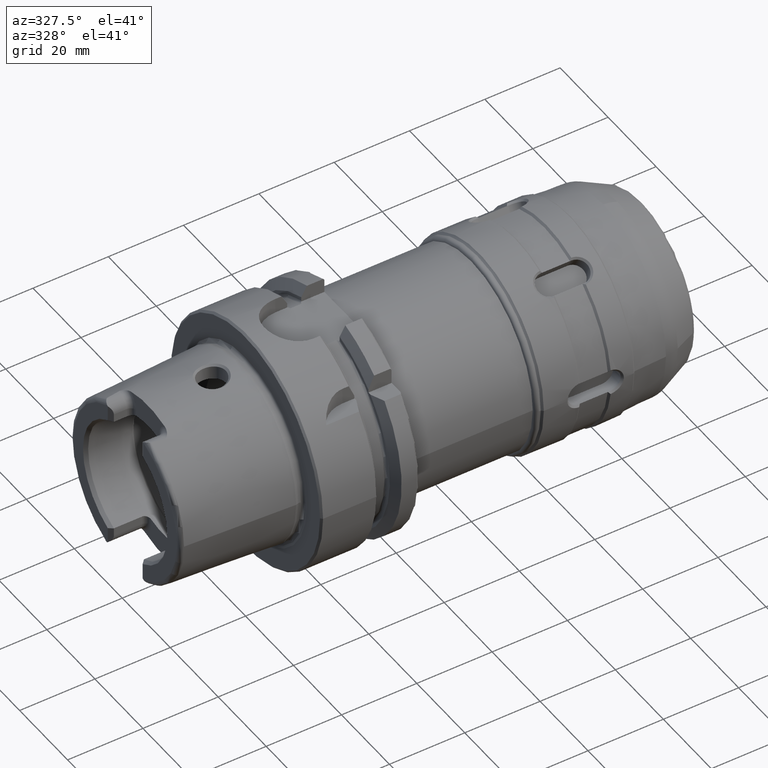
[diagram: clean part render]
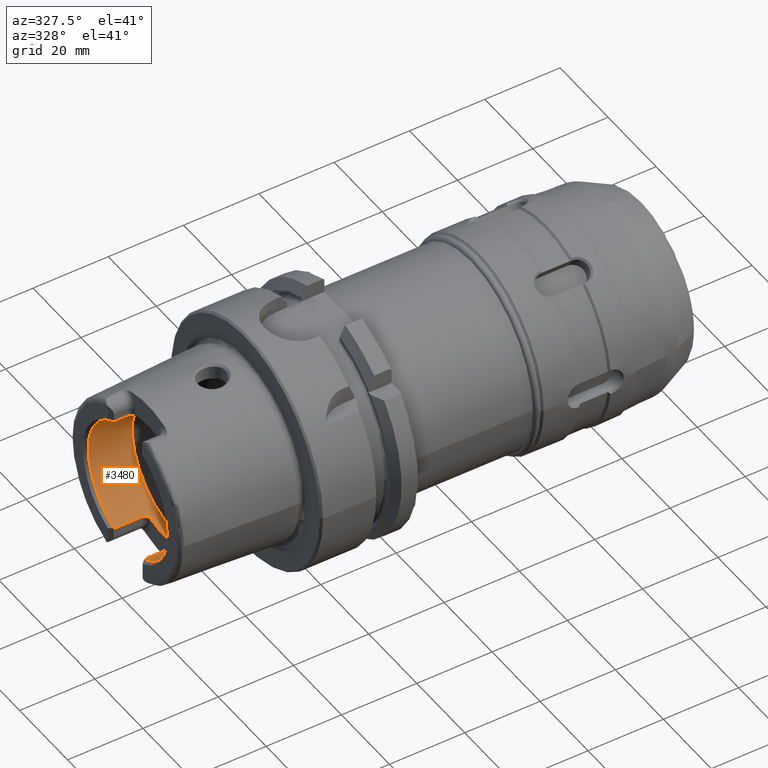
[diagram: same view with one face highlighted and labeled with its STEP entity id]
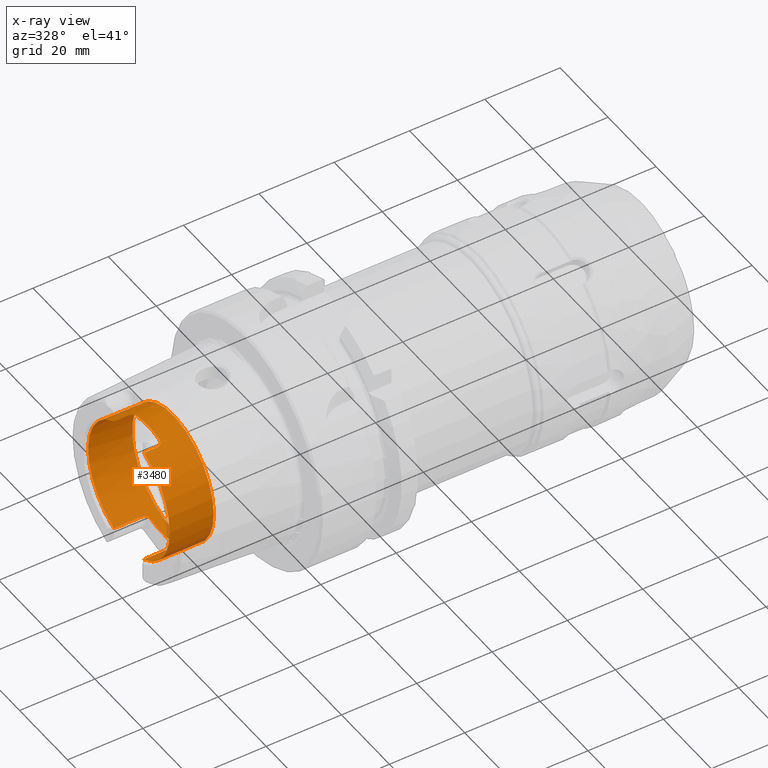
[diagram: x-ray of the same camera — body ghosted, the highlighted face saturated]
A machine part, auxiliary view. The second image highlights one B-rep face of the part: STEP entity #3480.
The next image is the same camera in x-ray: the body ghosted, the highlighted face saturated — about 0% of this face is hidden behind the body in this view.
In plain terms, the highlighted cylindrical surface (bore or boss wall) has radius 17 mm, axis along (-1, 0, -0).
Its self-contained STEP definition (entity closure, byte-faithful):
#149=B_SPLINE_CURVE_WITH_KNOTS('',3,(#6326,#6327,#6328,#6329,#6330,#6331,
#6332,#6333,#6334,#6335),.UNSPECIFIED.,.F.,.F.,(4,2,2,2,4),(0.229569660485746,
0.289239803007022,0.348909945528297,0.405407845050218,0.46190574457214),
 .UNSPECIFIED.);
#150=B_SPLINE_CURVE_WITH_KNOTS('',3,(#6344,#6345,#6346,#6347,#6348,#6349,
#6350,#6351,#6352,#6353),.UNSPECIFIED.,.F.,.F.,(4,2,2,2,4),(0.46190574457214,
0.519239917776744,0.576574090981348,0.635410522815223,0.694246954649097),
 .UNSPECIFIED.);
#151=B_SPLINE_CURVE_WITH_KNOTS('',3,(#6362,#6363,#6364,#6365,#6366,#6367,
#6368,#6369,#6370,#6371),.UNSPECIFIED.,.F.,.F.,(4,2,2,2,4),(0.461905744572139,
0.518403644094061,0.574901543615982,0.634571686137257,0.694241828658533),
 .UNSPECIFIED.);
#152=B_SPLINE_CURVE_WITH_KNOTS('',3,(#6385,#6386,#6387,#6388,#6389,#6390,
#6391,#6392,#6393,#6394),.UNSPECIFIED.,.F.,.F.,(4,2,2,2,4),(0.229569660485747,
0.289239803007022,0.348909945528297,0.405407845050218,0.46190574457214),
 .UNSPECIFIED.);
#452=FACE_OUTER_BOUND('',#666,.T.);
#666=EDGE_LOOP('',(#2735,#2736,#2737,#2738,#2739,#2740,#2741,#2742,#2743,
#2744,#2745,#2746,#2747,#2748,#2749,#2750,#2751));
#799=LINE('',#5142,#980);
#805=LINE('',#5158,#986);
#811=LINE('',#5213,#992);
#815=LINE('',#5279,#996);
#885=LINE('',#6409,#1066);
#980=VECTOR('',#4147,10.);
#986=VECTOR('',#4161,10.);
#992=VECTOR('',#4183,10.);
#996=VECTOR('',#4207,10.);
#1066=VECTOR('',#4543,17.);
#1233=CIRCLE('',#3842,17.);
#1238=CIRCLE('',#3853,17.);
#1239=CIRCLE('',#3855,17.);
#1240=CIRCLE('',#3856,17.);
#1241=CIRCLE('',#3857,17.);
#1242=CIRCLE('',#3858,17.);
#1243=CIRCLE('',#3859,17.);
#1362=VERTEX_POINT('',#5095);
#1369=VERTEX_POINT('',#5141);
#1372=VERTEX_POINT('',#5148);
#1375=VERTEX_POINT('',#5156);
#1383=VERTEX_POINT('',#5203);
#1386=VERTEX_POINT('',#5211);
#1393=VERTEX_POINT('',#5246);
#1398=VERTEX_POINT('',#5278);
#1516=VERTEX_POINT('',#6324);
#1518=VERTEX_POINT('',#6343);
#1520=VERTEX_POINT('',#6361);
#1521=VERTEX_POINT('',#6378);
#1523=VERTEX_POINT('',#6405);
#1524=VERTEX_POINT('',#6406);
#1525=VERTEX_POINT('',#6408);
#1732=EDGE_CURVE('',#1369,#1362,#799,.T.);
#1740=EDGE_CURVE('',#1372,#1375,#805,.T.);
#1753=EDGE_CURVE('',#1383,#1386,#811,.T.);
#1767=EDGE_CURVE('',#1398,#1393,#815,.T.);
#1944=EDGE_CURVE('',#1516,#1386,#149,.T.);
#1948=EDGE_CURVE('',#1398,#1518,#150,.T.);
#1953=EDGE_CURVE('',#1369,#1520,#151,.T.);
#1957=EDGE_CURVE('',#1521,#1520,#1233,.T.);
#1961=EDGE_CURVE('',#1521,#1375,#152,.T.);
#1965=EDGE_CURVE('',#1516,#1518,#1238,.T.);
#1966=EDGE_CURVE('',#1523,#1524,#1239,.T.);
#1967=EDGE_CURVE('',#1523,#1525,#885,.T.);
#1968=EDGE_CURVE('',#1383,#1525,#1240,.T.);
#1969=EDGE_CURVE('',#1372,#1393,#1241,.T.);
#1970=EDGE_CURVE('',#1525,#1362,#1242,.T.);
#1971=EDGE_CURVE('',#1524,#1523,#1243,.T.);
#2735=ORIENTED_EDGE('',*,*,#1966,.F.);
#2736=ORIENTED_EDGE('',*,*,#1967,.T.);
#2737=ORIENTED_EDGE('',*,*,#1968,.F.);
#2738=ORIENTED_EDGE('',*,*,#1753,.T.);
#2739=ORIENTED_EDGE('',*,*,#1944,.F.);
#2740=ORIENTED_EDGE('',*,*,#1965,.T.);
#2741=ORIENTED_EDGE('',*,*,#1948,.F.);
#2742=ORIENTED_EDGE('',*,*,#1767,.T.);
#2743=ORIENTED_EDGE('',*,*,#1969,.F.);
#2744=ORIENTED_EDGE('',*,*,#1740,.T.);
#2745=ORIENTED_EDGE('',*,*,#1961,.F.);
#2746=ORIENTED_EDGE('',*,*,#1957,.T.);
#2747=ORIENTED_EDGE('',*,*,#1953,.F.);
#2748=ORIENTED_EDGE('',*,*,#1732,.T.);
#2749=ORIENTED_EDGE('',*,*,#1970,.F.);
#2750=ORIENTED_EDGE('',*,*,#1967,.F.);
#2751=ORIENTED_EDGE('',*,*,#1971,.F.);
#3356=CYLINDRICAL_SURFACE('',#3854,17.);
#3480=ADVANCED_FACE('',(#452),#3356,.F.);
#3842=AXIS2_PLACEMENT_3D('',#6379,#4513,#4514);
#3853=AXIS2_PLACEMENT_3D('',#6403,#4537,#4538);
#3854=AXIS2_PLACEMENT_3D('',#6404,#4539,#4540);
#3855=AXIS2_PLACEMENT_3D('',#6407,#4541,#4542);
#3856=AXIS2_PLACEMENT_3D('',#6410,#4544,#4545);
#3857=AXIS2_PLACEMENT_3D('',#6411,#4546,#4547);
#3858=AXIS2_PLACEMENT_3D('',#6412,#4548,#4549);
#3859=AXIS2_PLACEMENT_3D('',#6413,#4550,#4551);
#4147=DIRECTION('',(-1.,0.,0.));
#4161=DIRECTION('',(1.,0.,0.));
#4183=DIRECTION('',(1.,0.,0.));
#4207=DIRECTION('',(-1.,0.,0.));
#4513=DIRECTION('center_axis',(-1.,0.,0.));
#4514=DIRECTION('ref_axis',(0.,1.,0.));
#4537=DIRECTION('center_axis',(-1.,0.,0.));
#4538=DIRECTION('ref_axis',(0.,1.,0.));
#4539=DIRECTION('center_axis',(-1.,0.,0.));
#4540=DIRECTION('ref_axis',(0.,1.,0.));
#4541=DIRECTION('center_axis',(-1.,0.,0.));
#4542=DIRECTION('ref_axis',(0.,0.,1.));
#4543=DIRECTION('',(-1.,0.,0.));
#4544=DIRECTION('center_axis',(1.,0.,0.));
#4545=DIRECTION('ref_axis',(0.,-1.,0.));
#4546=DIRECTION('center_axis',(1.,0.,0.));
#4547=DIRECTION('ref_axis',(0.,-1.,0.));
#4548=DIRECTION('center_axis',(1.,0.,0.));
#4549=DIRECTION('ref_axis',(0.,-1.,0.));
#4550=DIRECTION('center_axis',(-1.,0.,0.));
#4551=DIRECTION('ref_axis',(0.,0.,1.));
#5095=CARTESIAN_POINT('',(-31.,-6.27,-15.8014904360317));
#5141=CARTESIAN_POINT('',(-23.5,-6.27,-15.8014904360317));
#5142=CARTESIAN_POINT('',(-25.6423502691896,-6.27,-15.8014904360317));
#5148=CARTESIAN_POINT('',(-31.,6.27,-15.8014904360317));
#5156=CARTESIAN_POINT('',(-23.5,6.27,-15.8014904360317));
#5158=CARTESIAN_POINT('',(-25.6423502691896,6.27,-15.8014904360317));
#5203=CARTESIAN_POINT('',(-31.,-6.27,15.8014904360317));
#5211=CARTESIAN_POINT('',(-27.5,-6.27,15.8014904360317));
#5213=CARTESIAN_POINT('',(-25.6423502691896,-6.27,15.8014904360317));
#5246=CARTESIAN_POINT('',(-31.,6.27,15.8014904360317));
#5278=CARTESIAN_POINT('',(-27.5,6.27,15.8014904360317));
#5279=CARTESIAN_POINT('',(-25.6423502691896,6.27,15.8014904360317));
#6324=CARTESIAN_POINT('',(-26.,-4.77,16.3170800083839));
#6326=CARTESIAN_POINT('Ctrl Pts',(-26.,-4.77,16.3170800083839));
#6327=CARTESIAN_POINT('Ctrl Pts',(-26.,-4.96091029208457,16.2612708750845));
#6328=CARTESIAN_POINT('Ctrl Pts',(-26.0385404635846,-5.16378617408596,16.1979610859593));
#6329=CARTESIAN_POINT('Ctrl Pts',(-26.1950909803916,-5.53690543536203,16.0742436586733));
#6330=CARTESIAN_POINT('Ctrl Pts',(-26.3130861154278,-5.70721093092864,16.01400454532));
#6331=CARTESIAN_POINT('Ctrl Pts',(-26.5811791540138,-5.96960590306613,15.9179857910505));
#6332=CARTESIAN_POINT('Ctrl Pts',(-26.7467155703026,-6.082078486584,15.8749745356799));
#6333=CARTESIAN_POINT('Ctrl Pts',(-27.1119229195206,-6.23232125085234,15.8165946761251));
#6334=CARTESIAN_POINT('Ctrl Pts',(-27.3116736682603,-6.27,15.8014904360317));
#6335=CARTESIAN_POINT('Ctrl Pts',(-27.5,-6.27,15.8014904360317));
#6343=CARTESIAN_POINT('',(-26.,4.77,16.3170800083839));
#6344=CARTESIAN_POINT('Ctrl Pts',(-27.5,6.27,15.8014904360317));
#6345=CARTESIAN_POINT('Ctrl Pts',(-27.308886089318,6.27,15.8014904360317));
#6346=CARTESIAN_POINT('Ctrl Pts',(-27.1064099842243,6.23121026569193,15.8170435837256));
#6347=CARTESIAN_POINT('Ctrl Pts',(-26.7371019784685,6.07691823919465,15.8769617281184));
#6348=CARTESIAN_POINT('Ctrl Pts',(-26.5701870418163,5.96150738537594,15.9210500039306));
#6349=CARTESIAN_POINT('Ctrl Pts',(-26.3050641818979,5.69638452545756,16.017853695422));
#6350=CARTESIAN_POINT('Ctrl Pts',(-26.1900212186221,5.52750941197086,16.0774506535614));
#6351=CARTESIAN_POINT('Ctrl Pts',(-26.0374824299787,5.15846789211413,16.1996292802954));
#6352=CARTESIAN_POINT('Ctrl Pts',(-26.,4.95824289522375,16.2620506397863));
#6353=CARTESIAN_POINT('Ctrl Pts',(-26.,4.77,16.3170800083839));
#6361=CARTESIAN_POINT('',(-22.,-4.77,-16.3170800083839));
#6362=CARTESIAN_POINT('Ctrl Pts',(-23.5,-6.27,-15.8014904360317));
#6363=CARTESIAN_POINT('Ctrl Pts',(-23.3116736682603,-6.27,-15.8014904360317));
#6364=CARTESIAN_POINT('Ctrl Pts',(-23.1119229195206,-6.23232125085234,-15.8165946761251));
#6365=CARTESIAN_POINT('Ctrl Pts',(-22.7467155703026,-6.082078486584,-15.8749745356799));
#6366=CARTESIAN_POINT('Ctrl Pts',(-22.5811791540138,-5.96960590306613,-15.9179857910505));
#6367=CARTESIAN_POINT('Ctrl Pts',(-22.3130861154278,-5.70721093092864,-16.01400454532));
#6368=CARTESIAN_POINT('Ctrl Pts',(-22.1950909803916,-5.53690543536204,-16.0742436586733));
#6369=CARTESIAN_POINT('Ctrl Pts',(-22.0385404635846,-5.16378617408596,-16.1979610859593));
#6370=CARTESIAN_POINT('Ctrl Pts',(-22.,-4.96091029208457,-16.2612708750845));
#6371=CARTESIAN_POINT('Ctrl Pts',(-22.,-4.77,-16.3170800083839));
#6378=CARTESIAN_POINT('',(-22.,4.77,-16.3170800083839));
#6379=CARTESIAN_POINT('Origin',(-22.,0.,0.));
#6385=CARTESIAN_POINT('Ctrl Pts',(-22.,4.77,-16.3170800083839));
#6386=CARTESIAN_POINT('Ctrl Pts',(-22.,4.96091029208457,-16.2612708750845));
#6387=CARTESIAN_POINT('Ctrl Pts',(-22.0385404635846,5.16378617408596,-16.1979610859593));
#6388=CARTESIAN_POINT('Ctrl Pts',(-22.1950909803916,5.53690543536204,-16.0742436586733));
#6389=CARTESIAN_POINT('Ctrl Pts',(-22.3130861154278,5.70721093092864,-16.01400454532));
#6390=CARTESIAN_POINT('Ctrl Pts',(-22.5811791540138,5.96960590306613,-15.9179857910505));
#6391=CARTESIAN_POINT('Ctrl Pts',(-22.7467155703026,6.082078486584,-15.8749745356799));
#6392=CARTESIAN_POINT('Ctrl Pts',(-23.1119229195206,6.23232125085234,-15.8165946761251));
#6393=CARTESIAN_POINT('Ctrl Pts',(-23.3116736682603,6.27,-15.8014904360317));
#6394=CARTESIAN_POINT('Ctrl Pts',(-23.5,6.27,-15.8014904360317));
#6403=CARTESIAN_POINT('Origin',(-26.,0.,0.));
#6404=CARTESIAN_POINT('Origin',(-25.6423502691896,0.,0.));
#6405=CARTESIAN_POINT('',(-19.2847005383793,-17.,2.0818995585505E-15));
#6406=CARTESIAN_POINT('',(-19.2847005383793,-2.0818995585505E-15,-17.));
#6407=CARTESIAN_POINT('Origin',(-19.2847005383793,0.,0.));
#6408=CARTESIAN_POINT('',(-31.,-17.,2.0818995585505E-15));
#6409=CARTESIAN_POINT('',(-25.6423502691896,-17.,2.0818995585505E-15));
#6410=CARTESIAN_POINT('Origin',(-31.,0.,0.));
#6411=CARTESIAN_POINT('Origin',(-31.,0.,0.));
#6412=CARTESIAN_POINT('Origin',(-31.,0.,0.));
#6413=CARTESIAN_POINT('Origin',(-19.2847005383793,0.,0.));